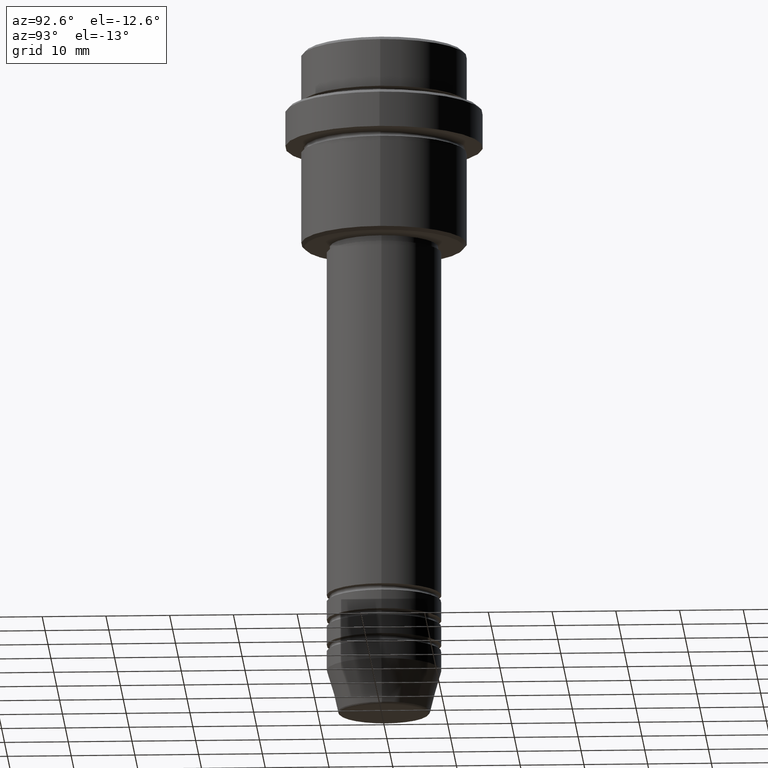
[diagram: clean part render]
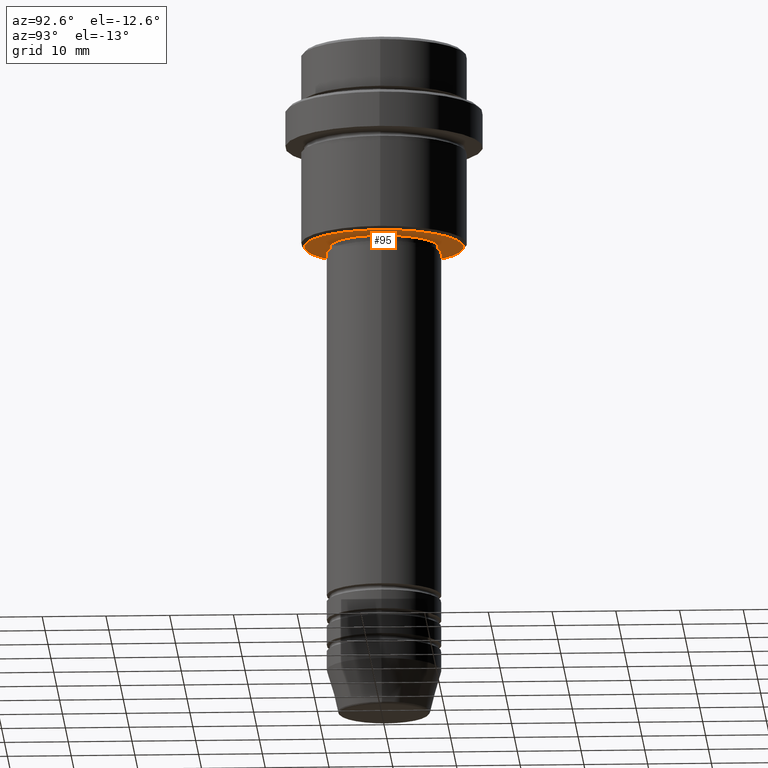
[diagram: same view with one face highlighted and labeled with its STEP entity id]
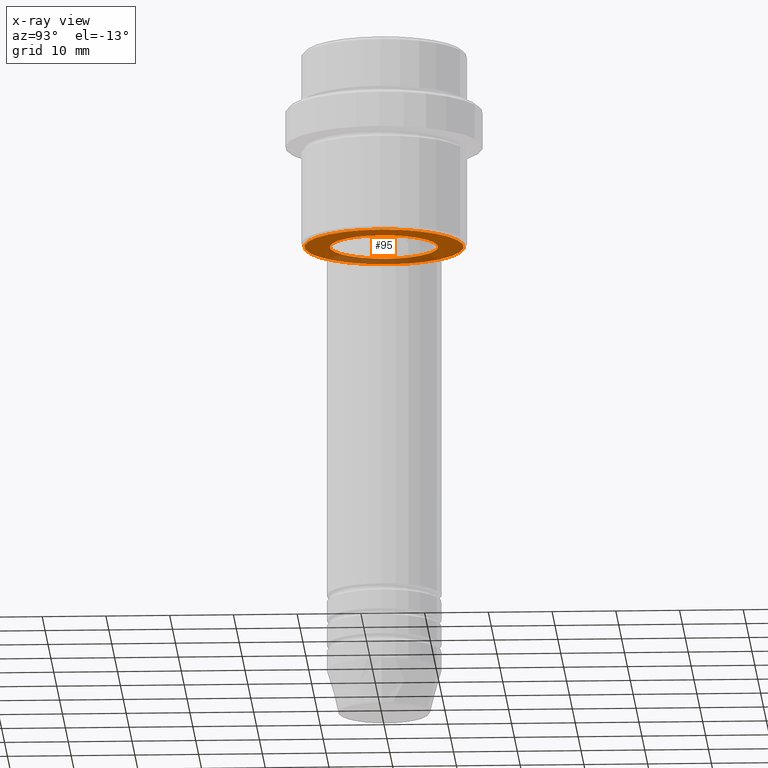
[diagram: x-ray of the same camera — body ghosted, the highlighted face saturated]
A machine part, auxiliary view. The second image highlights one B-rep face of the part: STEP entity #95.
The next image is the same camera in x-ray: the body ghosted, the highlighted face saturated — about 26% of this face is hidden behind the body in this view.
In plain terms, the highlighted planar face has unit normal (0, 0, -1).
Its self-contained STEP definition (entity closure, byte-faithful):
#81 = CARTESIAN_POINT ( 'NONE',  ( 8.499999999999994671, 0.000000000000000000, -30.99999999999999289 ) ) ;
#95 = ADVANCED_FACE ( 'NONE', ( #645, #1322 ), #1203, .T. ) ;
#103 = ORIENTED_EDGE ( 'NONE', *, *, #761, .T. ) ;
#108 = CARTESIAN_POINT ( 'NONE',  ( -12.49999999999996980, 1.561424668912873336E-15, -30.99999999999999645 ) ) ;
#162 = DIRECTION ( 'NONE',  ( 0.000000000000000000, 0.000000000000000000, -1.000000000000000000 ) ) ;
#182 = EDGE_LOOP ( 'NONE', ( #968, #312 ) ) ;
#187 = DIRECTION ( 'NONE',  ( -0.000000000000000000, -0.000000000000000000, 1.000000000000000000 ) ) ;
#188 = CIRCLE ( 'NONE', #988, 12.49999999999996980 ) ;
#231 = CARTESIAN_POINT ( 'NONE',  ( 0.000000000000000000, 13.00000000000000000, -30.99999999999999645 ) ) ;
#290 = VERTEX_POINT ( 'NONE', #1276 ) ;
#301 = AXIS2_PLACEMENT_3D ( 'NONE', #407, #187, #1179 ) ;
#310 = EDGE_CURVE ( 'NONE', #290, #1225, #917, .T. ) ;
#312 = ORIENTED_EDGE ( 'NONE', *, *, #310, .T. ) ;
#320 = DIRECTION ( 'NONE',  ( -1.000000000000000000, 0.000000000000000000, -0.000000000000000000 ) ) ;
#327 = CIRCLE ( 'NONE', #373, 12.49999999999996980 ) ;
#350 = DIRECTION ( 'NONE',  ( -1.000000000000000000, 0.000000000000000000, 0.000000000000000000 ) ) ;
#367 = DIRECTION ( 'NONE',  ( 1.000000000000000000, 0.000000000000000000, 0.000000000000000000 ) ) ;
#373 = AXIS2_PLACEMENT_3D ( 'NONE', #1202, #451, #350 ) ;
#401 = CARTESIAN_POINT ( 'NONE',  ( 0.000000000000000000, 0.000000000000000000, -30.99999999999999645 ) ) ;
#407 = CARTESIAN_POINT ( 'NONE',  ( 0.000000000000000000, 0.000000000000000000, -30.99999999999999289 ) ) ;
#410 = EDGE_CURVE ( 'NONE', #1102, #498, #327, .T. ) ;
#451 = DIRECTION ( 'NONE',  ( 0.000000000000000000, 0.000000000000000000, -1.000000000000000000 ) ) ;
#477 = DIRECTION ( 'NONE',  ( -0.000000000000000000, -0.000000000000000000, 1.000000000000000000 ) ) ;
#498 = VERTEX_POINT ( 'NONE', #108 ) ;
#547 = DIRECTION ( 'NONE',  ( 0.000000000000000000, 0.000000000000000000, -1.000000000000000000 ) ) ;
#575 = EDGE_CURVE ( 'NONE', #1225, #290, #1401, .T. ) ;
#645 = FACE_OUTER_BOUND ( 'NONE', #823, .T. ) ;
#680 = CARTESIAN_POINT ( 'NONE',  ( 0.000000000000000000, 0.000000000000000000, -30.99999999999999289 ) ) ;
#753 = ORIENTED_EDGE ( 'NONE', *, *, #410, .T. ) ;
#761 = EDGE_CURVE ( 'NONE', #498, #1102, #188, .T. ) ;
#823 = EDGE_LOOP ( 'NONE', ( #753, #103 ) ) ;
#917 = CIRCLE ( 'NONE', #301, 8.499999999999994671 ) ;
#940 = AXIS2_PLACEMENT_3D ( 'NONE', #231, #547, #320 ) ;
#962 = DIRECTION ( 'NONE',  ( -1.000000000000000000, 0.000000000000000000, 0.000000000000000000 ) ) ;
#968 = ORIENTED_EDGE ( 'NONE', *, *, #575, .T. ) ;
#988 = AXIS2_PLACEMENT_3D ( 'NONE', #401, #162, #962 ) ;
#1102 = VERTEX_POINT ( 'NONE', #1385 ) ;
#1179 = DIRECTION ( 'NONE',  ( 1.000000000000000000, 0.000000000000000000, 0.000000000000000000 ) ) ;
#1202 = CARTESIAN_POINT ( 'NONE',  ( 0.000000000000000000, 0.000000000000000000, -30.99999999999999645 ) ) ;
#1203 = PLANE ( 'NONE',  #940 ) ;
#1225 = VERTEX_POINT ( 'NONE', #81 ) ;
#1276 = CARTESIAN_POINT ( 'NONE',  ( -8.499999999999994671, 1.040949779275249745E-15, -30.99999999999999289 ) ) ;
#1292 = AXIS2_PLACEMENT_3D ( 'NONE', #680, #477, #367 ) ;
#1322 = FACE_BOUND ( 'NONE', #182, .T. ) ;
#1385 = CARTESIAN_POINT ( 'NONE',  ( 12.49999999999996980, 0.000000000000000000, -30.99999999999999645 ) ) ;
#1401 = CIRCLE ( 'NONE', #1292, 8.499999999999994671 ) ;